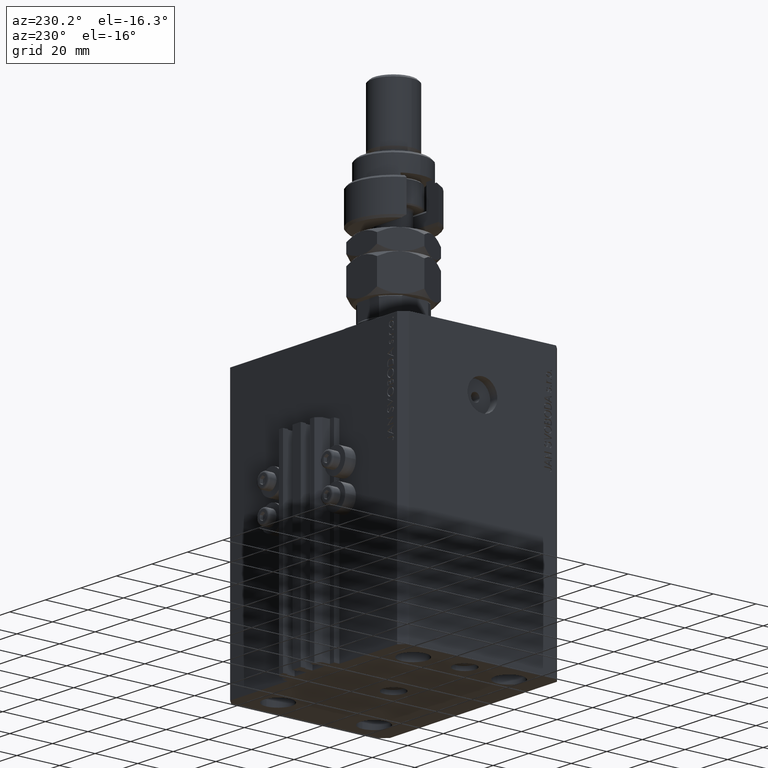
[diagram: clean part render]
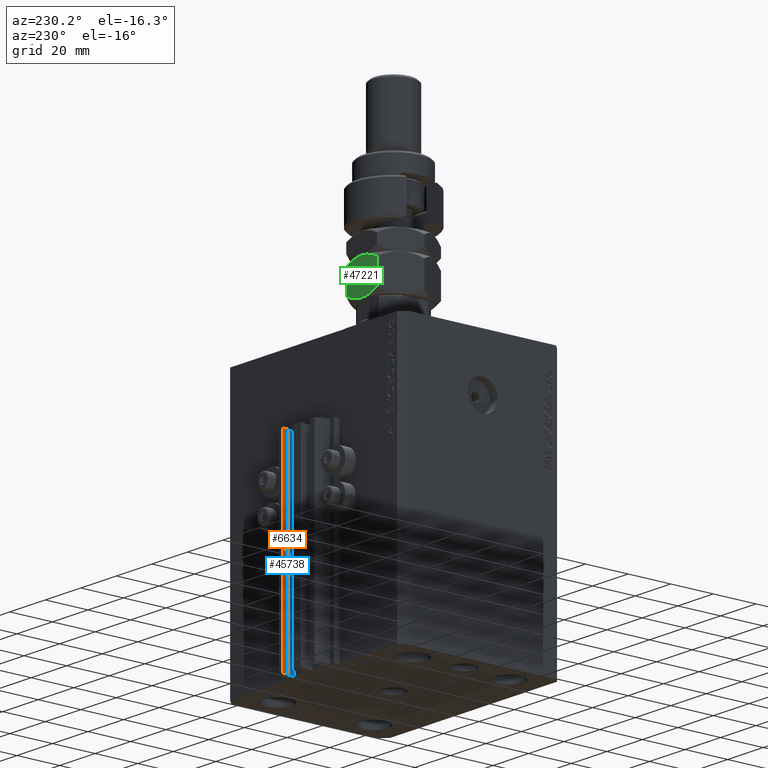
[diagram: same view with three faces highlighted in distinct colors, each labeled with its STEP entity id]
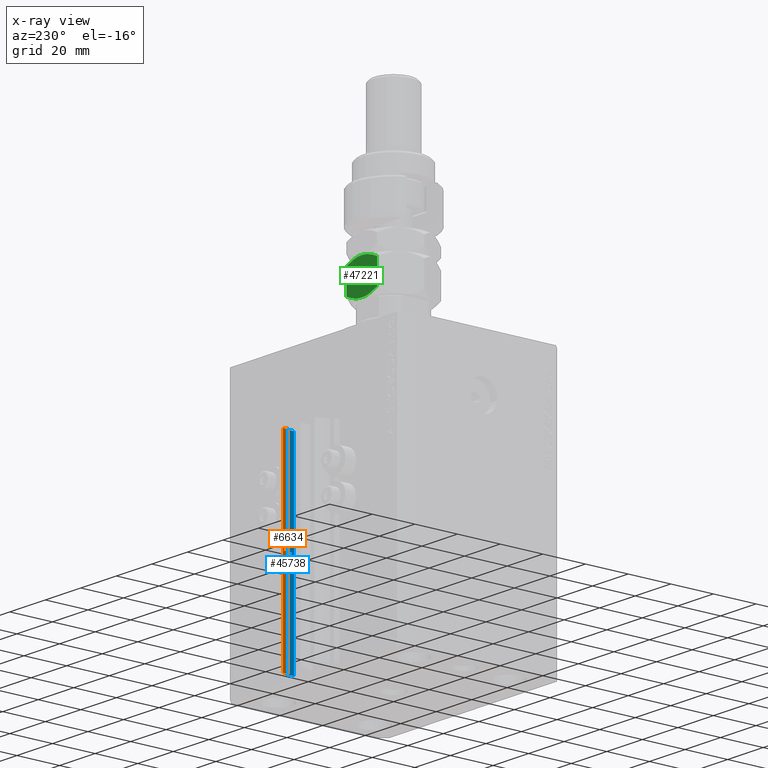
[diagram: x-ray of the same camera — body ghosted, the three highlighted faces saturated]
A machine part, auxiliary view with three faces highlighted in distinct colors.
The next image is the same camera in x-ray (body ghosted, the three faces saturated) — at least one of them is partly hidden behind the body in this view.
Their STEP definitions:

[orange] entity #6634 — the highlighted planar face has unit normal (-1, 0, 0).
#581 = VERTEX_POINT ( 'NONE', #38653 ) ;
#849 = ORIENTED_EDGE ( 'NONE', *, *, #27165, .F. ) ;
#1508 = LINE ( 'NONE', #9875, #49596 ) ;
#1934 = DIRECTION ( 'NONE',  ( 0.000000000000000000, 0.000000000000000000, 1.000000000000000000 ) ) ;
#2433 = CARTESIAN_POINT ( 'NONE',  ( 7.649999999999998579, 45.50000000000002842, -125.0000000000000000 ) ) ;
#5409 = VECTOR ( 'NONE', #42067, 1000.000000000000000 ) ;
#5829 = DIRECTION ( 'NONE',  ( 0.000000000000000000, -1.000000000000000000, 0.000000000000000000 ) ) ;
#6039 = CARTESIAN_POINT ( 'NONE',  ( 7.649999999999998579, 45.50000000000002842, -33.00000000000000000 ) ) ;
#6634 = ADVANCED_FACE ( 'NONE', ( #18838 ), #42224, .T. ) ;
#7755 = CARTESIAN_POINT ( 'NONE',  ( 7.649999999999998579, 43.10000000000002984, -125.0000000000000000 ) ) ;
#8012 = CARTESIAN_POINT ( 'NONE',  ( 7.649999999999998579, 45.50000000000002842, -125.0000000000000000 ) ) ;
#8409 = DIRECTION ( 'NONE',  ( 0.000000000000000000, 0.000000000000000000, 1.000000000000000000 ) ) ;
#8764 = EDGE_CURVE ( 'NONE', #581, #17361, #36744, .T. ) ;
#9646 = DIRECTION ( 'NONE',  ( 0.000000000000000000, 0.000000000000000000, 1.000000000000000000 ) ) ;
#9875 = CARTESIAN_POINT ( 'NONE',  ( 7.649999999999998579, 45.50000000000002842, -33.00000000000000000 ) ) ;
#11479 = EDGE_LOOP ( 'NONE', ( #849, #45988, #32147, #16480 ) ) ;
#12953 = LINE ( 'NONE', #29203, #18465 ) ;
#16174 = VERTEX_POINT ( 'NONE', #7755 ) ;
#16480 = ORIENTED_EDGE ( 'NONE', *, *, #16841, .T. ) ;
#16841 = EDGE_CURVE ( 'NONE', #16174, #44485, #12953, .T. ) ;
#17361 = VERTEX_POINT ( 'NONE', #6039 ) ;
#18465 = VECTOR ( 'NONE', #9646, 1000.000000000000000 ) ;
#18838 = FACE_OUTER_BOUND ( 'NONE', #11479, .T. ) ;
#25985 = CARTESIAN_POINT ( 'NONE',  ( 7.649999999999998579, 43.10000000000002984, -33.00000000000000000 ) ) ;
#27165 = EDGE_CURVE ( 'NONE', #17361, #44485, #1508, .T. ) ;
#29203 = CARTESIAN_POINT ( 'NONE',  ( 7.649999999999998579, 43.10000000000002984, -125.0000000000000000 ) ) ;
#31521 = DIRECTION ( 'NONE',  ( -1.000000000000000000, 0.000000000000000000, 0.000000000000000000 ) ) ;
#32102 = EDGE_CURVE ( 'NONE', #581, #16174, #41822, .T. ) ;
#32147 = ORIENTED_EDGE ( 'NONE', *, *, #32102, .T. ) ;
#35798 = VECTOR ( 'NONE', #1934, 1000.000000000000000 ) ;
#36744 = LINE ( 'NONE', #2433, #35798 ) ;
#38653 = CARTESIAN_POINT ( 'NONE',  ( 7.649999999999998579, 45.50000000000002842, -125.0000000000000000 ) ) ;
#41822 = LINE ( 'NONE', #8012, #5409 ) ;
#42067 = DIRECTION ( 'NONE',  ( 0.000000000000000000, -1.000000000000000000, 0.000000000000000000 ) ) ;
#42224 = PLANE ( 'NONE',  #44637 ) ;
#42478 = CARTESIAN_POINT ( 'NONE',  ( 7.649999999999998579, 45.50000000000002842, -125.0000000000000000 ) ) ;
#44485 = VERTEX_POINT ( 'NONE', #25985 ) ;
#44637 = AXIS2_PLACEMENT_3D ( 'NONE', #42478, #31521, #8409 ) ;
#45988 = ORIENTED_EDGE ( 'NONE', *, *, #8764, .F. ) ;
#49596 = VECTOR ( 'NONE', #5829, 1000.000000000000000 ) ;

[blue] entity #45738 — the highlighted planar face has unit normal (-1, 0, 0).
#1506 = VECTOR ( 'NONE', #6854, 1000.000000000000000 ) ;
#2349 = ORIENTED_EDGE ( 'NONE', *, *, #43800, .F. ) ;
#6207 = VERTEX_POINT ( 'NONE', #9539 ) ;
#6854 = DIRECTION ( 'NONE',  ( 0.000000000000000000, 0.000000000000000000, 1.000000000000000000 ) ) ;
#8094 = CARTESIAN_POINT ( 'NONE',  ( 8.400000000000000355, 42.90000000000001990, -33.00000000000000000 ) ) ;
#9539 = CARTESIAN_POINT ( 'NONE',  ( 8.400000000000000355, 39.70000000000000995, -33.00000000000000000 ) ) ;
#9569 = VERTEX_POINT ( 'NONE', #48136 ) ;
#9700 = ORIENTED_EDGE ( 'NONE', *, *, #18042, .F. ) ;
#10404 = LINE ( 'NONE', #22583, #1506 ) ;
#15467 = AXIS2_PLACEMENT_3D ( 'NONE', #39744, #17109, #16598 ) ;
#16598 = DIRECTION ( 'NONE',  ( -5.421010862427508365E-16, -1.000000000000000000, 0.000000000000000000 ) ) ;
#17109 = DIRECTION ( 'NONE',  ( -1.000000000000000000, 5.421010862427508365E-16, 0.000000000000000000 ) ) ;
#18042 = EDGE_CURVE ( 'NONE', #45545, #9569, #10404, .T. ) ;
#18383 = EDGE_CURVE ( 'NONE', #47975, #6207, #32728, .T. ) ;
#19057 = LINE ( 'NONE', #38398, #38141 ) ;
#20152 = VECTOR ( 'NONE', #24334, 1000.000000000000000 ) ;
#22583 = CARTESIAN_POINT ( 'NONE',  ( 8.400000000000003908, 42.90000000000001990, -125.0000000000000000 ) ) ;
#23058 = EDGE_LOOP ( 'NONE', ( #2349, #9700, #25497, #30181 ) ) ;
#23703 = EDGE_CURVE ( 'NONE', #45545, #47975, #19057, .T. ) ;
#24235 = PLANE ( 'NONE',  #15467 ) ;
#24334 = DIRECTION ( 'NONE',  ( 0.000000000000000000, 0.000000000000000000, 1.000000000000000000 ) ) ;
#25497 = ORIENTED_EDGE ( 'NONE', *, *, #23703, .T. ) ;
#28383 = VECTOR ( 'NONE', #47185, 1000.000000000000000 ) ;
#30181 = ORIENTED_EDGE ( 'NONE', *, *, #18383, .T. ) ;
#32728 = LINE ( 'NONE', #44395, #20152 ) ;
#35047 = LINE ( 'NONE', #8094, #28383 ) ;
#35943 = FACE_OUTER_BOUND ( 'NONE', #23058, .T. ) ;
#38141 = VECTOR ( 'NONE', #44817, 1000.000000000000000 ) ;
#38398 = CARTESIAN_POINT ( 'NONE',  ( 8.400000000000000355, 42.90000000000001990, -125.0000000000000000 ) ) ;
#39744 = CARTESIAN_POINT ( 'NONE',  ( 8.400000000000000355, 42.90000000000001990, -125.0000000000000000 ) ) ;
#42788 = CARTESIAN_POINT ( 'NONE',  ( 8.400000000000003908, 42.90000000000001990, -125.0000000000000000 ) ) ;
#43800 = EDGE_CURVE ( 'NONE', #9569, #6207, #35047, .T. ) ;
#44395 = CARTESIAN_POINT ( 'NONE',  ( 8.400000000000000355, 39.70000000000000995, -125.0000000000000000 ) ) ;
#44817 = DIRECTION ( 'NONE',  ( -5.421010862427508365E-16, -1.000000000000000000, 0.000000000000000000 ) ) ;
#45545 = VERTEX_POINT ( 'NONE', #42788 ) ;
#45738 = ADVANCED_FACE ( 'NONE', ( #35943 ), #24235, .T. ) ;
#47185 = DIRECTION ( 'NONE',  ( -5.421010862427508365E-16, -1.000000000000000000, 0.000000000000000000 ) ) ;
#47975 = VERTEX_POINT ( 'NONE', #48605 ) ;
#48136 = CARTESIAN_POINT ( 'NONE',  ( 8.400000000000003908, 42.90000000000001990, -33.00000000000000000 ) ) ;
#48605 = CARTESIAN_POINT ( 'NONE',  ( 8.400000000000000355, 39.70000000000000995, -125.0000000000000000 ) ) ;

[green] entity #47221 — the highlighted planar face has unit normal (0, -1, 0).
#55 = CARTESIAN_POINT ( 'NONE',  ( 7.621669386706803087E-17, 17.32050807568877104, 2.320508075688761718 ) ) ;
#1313 = VECTOR ( 'NONE', #24859, 1000.000000000000000 ) ;
#2255 = CARTESIAN_POINT ( 'NONE',  ( 0.000000000000000000, 17.32050807568877104, 16.00000000000000000 ) ) ;
#2286 = CARTESIAN_POINT ( 'NONE',  ( -15.00000000000000000, 8.660254037844392627, 13.67949192431123429 ) ) ;
#2823 = CARTESIAN_POINT ( 'NONE',  ( -8.823580389329299223, 12.22621156269320863, 0.05953537397470442388 ) ) ;
#3503 = CARTESIAN_POINT ( 'NONE',  ( -4.881674457977373649, 14.50207201327941675, 15.71619733805371055 ) ) ;
#3639 = CARTESIAN_POINT ( 'NONE',  ( -15.00000000000000000, 8.660254037844392627, 16.00000000000000000 ) ) ;
#3829 = CARTESIAN_POINT ( 'NONE',  ( 0.000000000000000000, 17.32050807568877104, 16.00000000000000000 ) ) ;
#5874 = CARTESIAN_POINT ( 'NONE',  ( 7.621669386706803087E-17, 17.32050807568877104, 2.320508075688761718 ) ) ;
#5933 = CARTESIAN_POINT ( 'NONE',  ( -15.00000000000000000, 8.660254037844394404, 2.320508075688769711 ) ) ;
#6759 = VERTEX_POINT ( 'NONE', #5874 ) ;
#7691 = DIRECTION ( 'NONE',  ( -0.000000000000000000, -0.000000000000000000, -1.000000000000000000 ) ) ;
#8129 = PLANE ( 'NONE',  #14739 ) ;
#8305 = CARTESIAN_POINT ( 'NONE',  ( 3.803331551779305683E-16, 17.32050807568877104, 13.67949192431124317 ) ) ;
#9203 = ORIENTED_EDGE ( 'NONE', *, *, #37638, .F. ) ;
#9398 = CARTESIAN_POINT ( 'NONE',  ( -10.08691881950258740, 11.49682277995505864, 15.76967007806078236 ) ) ;
#9584 = CARTESIAN_POINT ( 'NONE',  ( 3.803331551779305683E-16, 17.32050807568877104, 13.67949192431124317 ) ) ;
#10398 = CARTESIAN_POINT ( 'NONE',  ( -8.804550678576905653, 12.23719837131869781, 16.00000000000000000 ) ) ;
#11186 = DIRECTION ( 'NONE',  ( 0.8660254037844389297, 0.4999999999999995559, 0.000000000000000000 ) ) ;
#13000 = ORIENTED_EDGE ( 'NONE', *, *, #30105, .T. ) ;
#13452 = CARTESIAN_POINT ( 'NONE',  ( -7.499999999999991118, 12.99038105676658184, 16.00000000000000000 ) ) ;
#14734 = CARTESIAN_POINT ( 'NONE',  ( -7.499999999999992895, 12.99038105676658361, 0.000000000000000000 ) ) ;
#14739 = AXIS2_PLACEMENT_3D ( 'NONE', #3829, #23633, #11186 ) ;
#14976 = CARTESIAN_POINT ( 'NONE',  ( -13.82389157469336283, 9.339280553791375894, 1.641481559741795548 ) ) ;
#15748 = FACE_OUTER_BOUND ( 'NONE', #23952, .T. ) ;
#17093 = B_SPLINE_CURVE_WITH_KNOTS ( 'NONE', 3,
 ( #20847, #14976, #29740, #26662, #25676, #2823, #21855, #14734 ),
 .UNSPECIFIED., .F., .F.,
 ( 4, 2, 2, 4 ),
 ( 2.544309033652409006E-07, 0.004488823491893913914, 0.006733108022389184058, 0.008977392552884454202 ),
 .UNSPECIFIED. ) ;
#17721 = LINE ( 'NONE', #2255, #1313 ) ;
#18972 = CARTESIAN_POINT ( 'NONE',  ( -7.499999999999991118, 12.99038105676658184, 16.00000000000000000 ) ) ;
#19728 = CARTESIAN_POINT ( 'NONE',  ( -1.176108425306640504, 16.64148155974180199, 14.35851844025821578 ) ) ;
#20797 = EDGE_CURVE ( 'NONE', #40823, #31941, #17093, .T. ) ;
#20847 = CARTESIAN_POINT ( 'NONE',  ( -15.00000000000000000, 8.660254037844394404, 2.320508075688769711 ) ) ;
#21070 = CARTESIAN_POINT ( 'NONE',  ( -13.82525345580783771, 9.338494271363320109, 14.35773215783021683 ) ) ;
#21157 = EDGE_CURVE ( 'NONE', #23263, #40468, #22478, .T. ) ;
#21855 = CARTESIAN_POINT ( 'NONE',  ( -8.156876182308247181, 12.61113341608666083, 3.106916850528774038E-15 ) ) ;
#22213 = CARTESIAN_POINT ( 'NONE',  ( -7.499999999999991118, 12.99038105676658184, 16.00000000000000000 ) ) ;
#22478 = B_SPLINE_CURVE_WITH_KNOTS ( 'NONE', 3,
 ( #8305, #19728, #23051, #42846, #3503, #23801, #34739, #18972 ),
 .UNSPECIFIED., .F., .F.,
 ( 4, 2, 2, 4 ),
 ( 2.544309033646407248E-07, 0.004488823491893900036, 0.006733108022389169313, 0.008977392552884438590 ),
 .UNSPECIFIED. ) ;
#23051 = CARTESIAN_POINT ( 'NONE',  ( -2.378834511187503331, 15.94708733029709435, 14.93551393225599710 ) ) ;
#23263 = VERTEX_POINT ( 'NONE', #9584 ) ;
#23326 = ORIENTED_EDGE ( 'NONE', *, *, #40912, .F. ) ;
#23633 = DIRECTION ( 'NONE',  ( 0.4999999999999995559, -0.8660254037844389297, 0.000000000000000000 ) ) ;
#23735 = VECTOR ( 'NONE', #7691, 1000.000000000000000 ) ;
#23801 = CARTESIAN_POINT ( 'NONE',  ( -6.176419610670691895, 13.75455055083996747, 15.94046462602529957 ) ) ;
#23952 = EDGE_LOOP ( 'NONE', ( #39089, #24625, #9203, #41507, #13000, #23326 ) ) ;
#24625 = ORIENTED_EDGE ( 'NONE', *, *, #50141, .F. ) ;
#24859 = DIRECTION ( 'NONE',  ( -0.000000000000000000, -0.000000000000000000, -1.000000000000000000 ) ) ;
#25676 = CARTESIAN_POINT ( 'NONE',  ( -10.11832554202262280, 11.47869010025375403, 0.2838026619462963862 ) ) ;
#26221 = CARTESIAN_POINT ( 'NONE',  ( -7.499999999999992895, 12.99038105676658361, 0.000000000000000000 ) ) ;
#26449 = CARTESIAN_POINT ( 'NONE',  ( -2.383929548160348855, 15.94414570932928576, 1.060479031370877401 ) ) ;
#26662 = CARTESIAN_POINT ( 'NONE',  ( -10.75222765045650597, 11.11270654730957119, 0.4475714085130295117 ) ) ;
#26703 = CARTESIAN_POINT ( 'NONE',  ( -4.913081180497406386, 14.48393933357811214, 0.2303299219392169472 ) ) ;
#29740 = CARTESIAN_POINT ( 'NONE',  ( -12.62116548881249400, 10.03367478323607109, 1.064486067744009556 ) ) ;
#30105 = EDGE_CURVE ( 'NONE', #23263, #6759, #17721, .T. ) ;
#31335 = B_SPLINE_CURVE_WITH_KNOTS ( 'NONE', 3,
 ( #26221, #38156, #26703, #26449, #45760, #55 ),
 .UNSPECIFIED., .F., .F.,
 ( 4, 2, 4 ),
 ( 0.008977392552884454202, 0.01343452311421656706, 0.01789165367554867991 ),
 .UNSPECIFIED. ) ;
#31941 = VERTEX_POINT ( 'NONE', #42390 ) ;
#33017 = CARTESIAN_POINT ( 'NONE',  ( -12.61607045183964715, 10.03661640420387435, 14.93952096862911816 ) ) ;
#34739 = CARTESIAN_POINT ( 'NONE',  ( -6.843123817691743938, 13.36962869744650995, 16.00000000000000355 ) ) ;
#35239 = B_SPLINE_CURVE_WITH_KNOTS ( 'NONE', 3,
 ( #13452, #10398, #9398, #33017, #21070, #36856 ),
 .UNSPECIFIED., .F., .F.,
 ( 4, 2, 4 ),
 ( 0.008977392552884438590, 0.01343452311421656012, 0.01789165367554868338 ),
 .UNSPECIFIED. ) ;
#36856 = CARTESIAN_POINT ( 'NONE',  ( -15.00000000000000000, 8.660254037844392627, 13.67949192431123429 ) ) ;
#37638 = EDGE_CURVE ( 'NONE', #40468, #41886, #35239, .T. ) ;
#38156 = CARTESIAN_POINT ( 'NONE',  ( -6.195449321423083688, 13.74356374221447297, 3.003578830963748213E-15 ) ) ;
#39089 = ORIENTED_EDGE ( 'NONE', *, *, #20797, .F. ) ;
#40468 = VERTEX_POINT ( 'NONE', #22213 ) ;
#40823 = VERTEX_POINT ( 'NONE', #5933 ) ;
#40912 = EDGE_CURVE ( 'NONE', #31941, #6759, #31335, .T. ) ;
#41507 = ORIENTED_EDGE ( 'NONE', *, *, #21157, .F. ) ;
#41886 = VERTEX_POINT ( 'NONE', #2286 ) ;
#42390 = CARTESIAN_POINT ( 'NONE',  ( -7.499999999999992895, 12.99038105676658361, 0.000000000000000000 ) ) ;
#42501 = LINE ( 'NONE', #3639, #23735 ) ;
#42846 = CARTESIAN_POINT ( 'NONE',  ( -4.247772349543481596, 14.86805556622359070, 15.55242859148697043 ) ) ;
#45760 = CARTESIAN_POINT ( 'NONE',  ( -1.174746544192158293, 16.64226784216984356, 1.642267842169780501 ) ) ;
#47221 = ADVANCED_FACE ( 'NONE', ( #15748 ), #8129, .F. ) ;
#50141 = EDGE_CURVE ( 'NONE', #41886, #40823, #42501, .T. ) ;